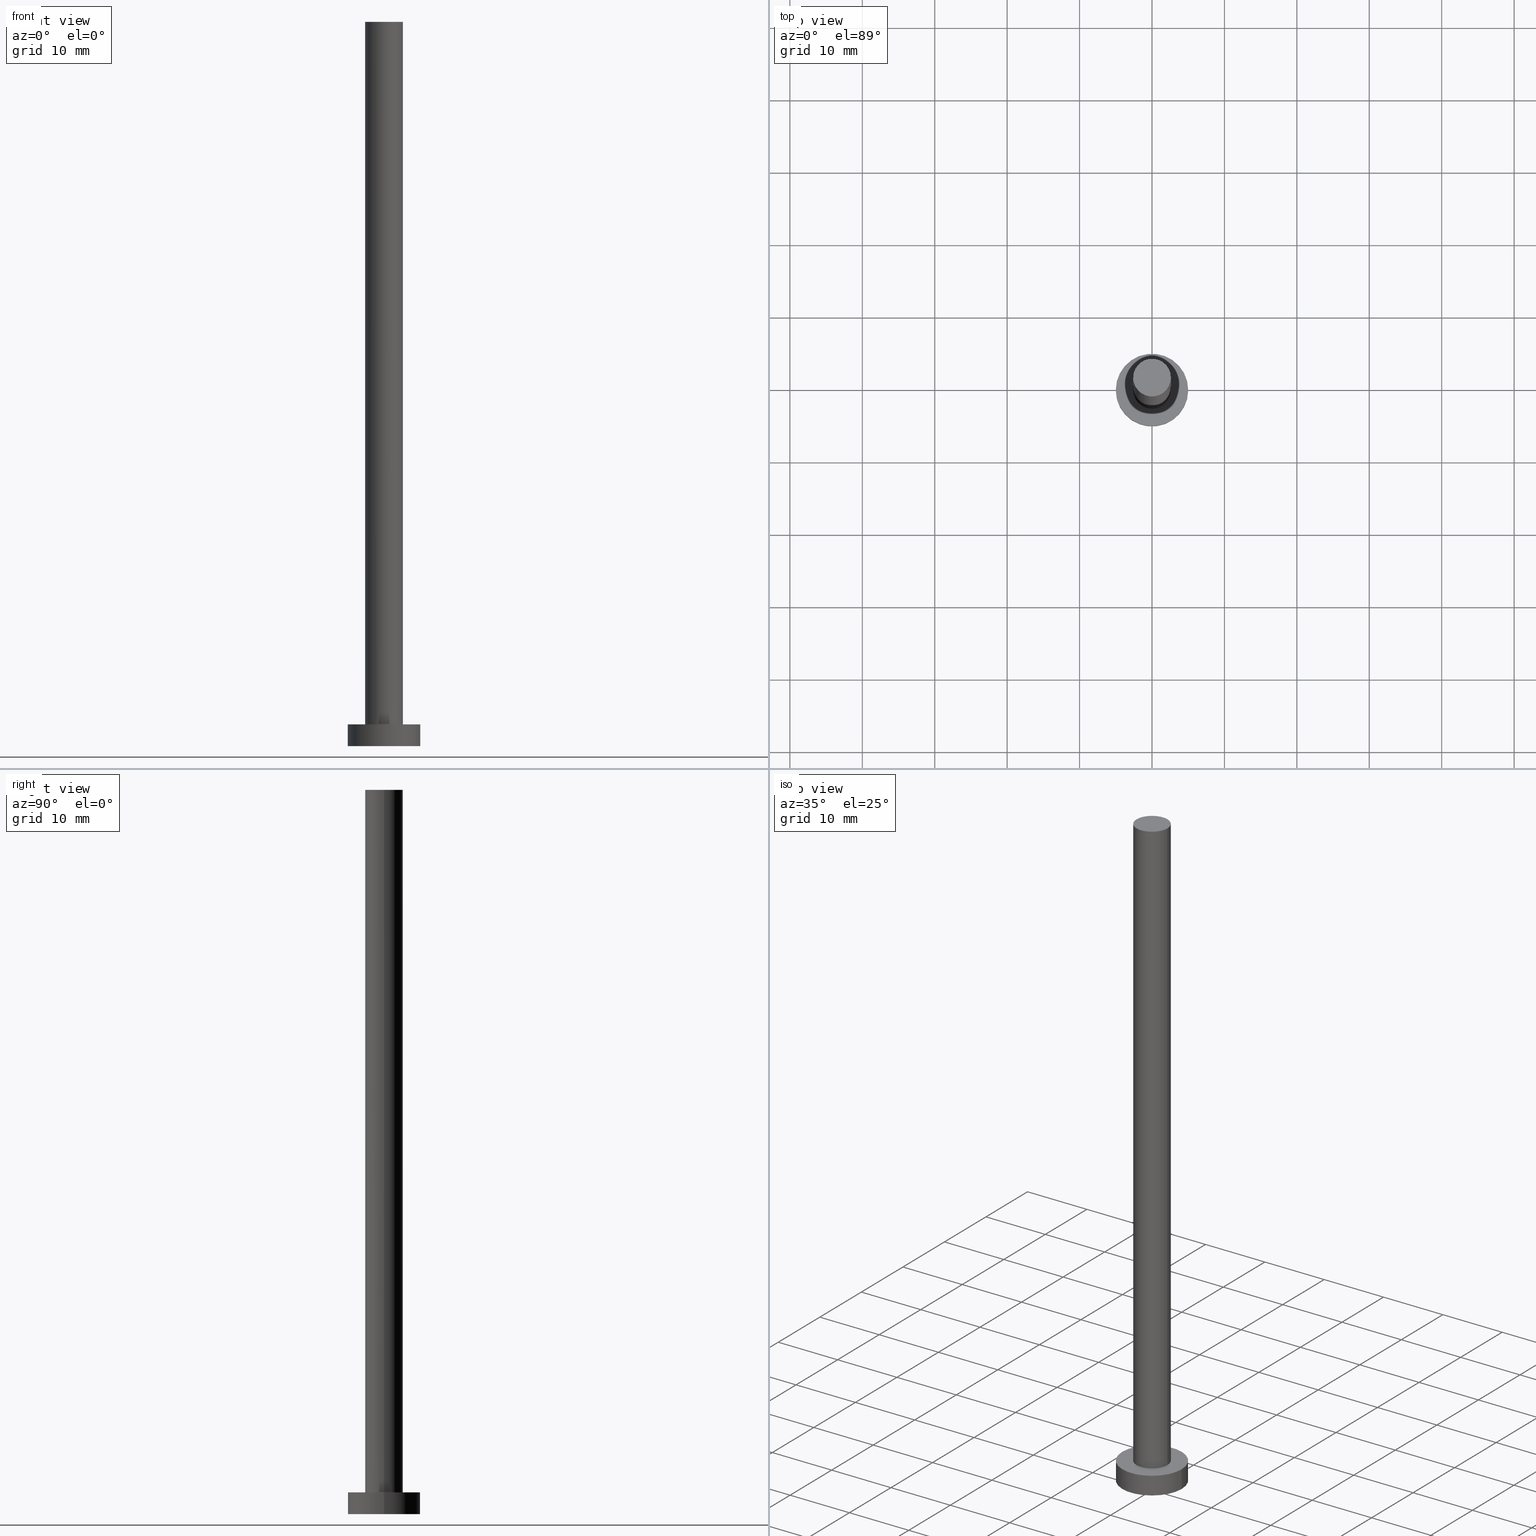
[diagram: canonical four-view strip — front | top / right | iso, engineering-drawing reading convention]
A machine part, canonical four-view strip (front | top / right | iso — engineering-drawing reading convention). The complete STEP part file that produces these views, byte-faithful:
ISO-10303-21;
HEADER;
FILE_DESCRIPTION (( 'STEP AP203' ),
    '1' );
FILE_NAME ('34a5.STEP',
    '2023-02-13T14:36:04',
    ( '' ),
    ( '' ),
    'SwSTEP 2.0',
    'SolidWorks 2019',
    '' );
FILE_SCHEMA (( 'CONFIG_CONTROL_DESIGN' ));
ENDSEC;

DATA;
#1 = DIRECTION ( 'NONE',  ( -0.000000000000000000, -0.000000000000000000, -1.000000000000000000 ) ) ;
#2 = ORIENTED_EDGE ( 'NONE', *, *, #92, .T. ) ;
#3 = CIRCLE ( 'NONE', #183, 2.600000000000000089 ) ;
#4 = VERTEX_POINT ( 'NONE', #167 ) ;
#5 = APPLICATION_CONTEXT ( 'configuration controlled 3d designs of mechanical parts and assemblies' ) ;
#6 = CARTESIAN_POINT ( 'NONE',  ( -5.000000000000000000, 0.000000000000000000, 3.000000000000000000 ) ) ;
#7 = CALENDAR_DATE ( 2023, 13, 2 ) ;
#8 = AXIS2_PLACEMENT_3D ( 'NONE', #98, #19, #80 ) ;
#9 = CC_DESIGN_PERSON_AND_ORGANIZATION_ASSIGNMENT ( #156, #53, ( #101 ) ) ;
#10 = DIRECTION ( 'NONE',  ( -0.000000000000000000, -0.000000000000000000, -1.000000000000000000 ) ) ;
#11 = CARTESIAN_POINT ( 'NONE',  ( 0.000000000000000000, 0.000000000000000000, 100.0000000000000000 ) ) ;
#12 = DATE_AND_TIME ( #161, #219 ) ;
#13 = AXIS2_PLACEMENT_3D ( 'NONE', #87, #166, #182 ) ;
#14 = APPROVAL_ROLE ( '' ) ;
#15 = APPROVAL_STATUS ( 'not_yet_approved' ) ;
#16 = DIRECTION ( 'NONE',  ( 1.000000000000000000, 0.000000000000000000, -0.000000000000000000 ) ) ;
#17 = DIRECTION ( 'NONE',  ( 1.000000000000000000, 0.000000000000000000, 0.000000000000000000 ) ) ;
#18 = EDGE_CURVE ( 'NONE', #4, #150, #3, .T. ) ;
#19 = DIRECTION ( 'NONE',  ( 0.000000000000000000, 0.000000000000000000, 1.000000000000000000 ) ) ;
#20 = ADVANCED_BREP_SHAPE_REPRESENTATION ( '34a5', ( #121, #8 ), #120 ) ;
#21 = CIRCLE ( 'NONE', #31, 5.000000000000000000 ) ;
#22 = CARTESIAN_POINT ( 'NONE',  ( 0.000000000000000000, 0.000000000000000000, 100.0000000000000000 ) ) ;
#23 = ORIENTED_EDGE ( 'NONE', *, *, #136, .F. ) ;
#24 = CYLINDRICAL_SURFACE ( 'NONE', #127, 5.000000000000000000 ) ;
#25 = APPROVAL_PERSON_ORGANIZATION ( #134, #146, #14 ) ;
#26 = CC_DESIGN_DATE_AND_TIME_ASSIGNMENT ( #12, #130, ( #201 ) ) ;
#27 = FACE_OUTER_BOUND ( 'NONE', #118, .T. ) ;
#28 = DIRECTION ( 'NONE',  ( 0.000000000000000000, 0.000000000000000000, 1.000000000000000000 ) ) ;
#29 = PERSON_AND_ORGANIZATION ( #49, #82 ) ;
#30 = CYLINDRICAL_SURFACE ( 'NONE', #140, 2.600000000000000089 ) ;
#31 = AXIS2_PLACEMENT_3D ( 'NONE', #185, #251, #50 ) ;
#32 = ORIENTED_EDGE ( 'NONE', *, *, #136, .T. ) ;
#33 = PERSON_AND_ORGANIZATION ( #49, #82 ) ;
#34 =( LENGTH_UNIT ( ) NAMED_UNIT ( * ) SI_UNIT ( .MILLI., .METRE. ) );
#35 = COORDINATED_UNIVERSAL_TIME_OFFSET ( 1, 0, .AHEAD. ) ;
#36 = ORIENTED_EDGE ( 'NONE', *, *, #175, .T. ) ;
#37 = FACE_BOUND ( 'NONE', #158, .T. ) ;
#38 = DATE_AND_TIME ( #7, #179 ) ;
#39 = AXIS2_PLACEMENT_3D ( 'NONE', #145, #228, #199 ) ;
#40 = ORIENTED_EDGE ( 'NONE', *, *, #175, .F. ) ;
#41 = ADVANCED_FACE ( 'NONE', ( #27 ), #91, .T. ) ;
#42 = LINE ( 'NONE', #196, #191 ) ;
#43 = LINE ( 'NONE', #6, #237 ) ;
#44 = AXIS2_PLACEMENT_3D ( 'NONE', #116, #109, #16 ) ;
#45 = DIRECTION ( 'NONE',  ( -0.000000000000000000, -0.000000000000000000, -1.000000000000000000 ) ) ;
#46 = DIRECTION ( 'NONE',  ( 0.000000000000000000, 0.000000000000000000, 1.000000000000000000 ) ) ;
#47 = EDGE_LOOP ( 'NONE', ( #23, #162, #2, #149 ) ) ;
#48 = ORIENTED_EDGE ( 'NONE', *, *, #74, .T. ) ;
#49 = PERSON ( 'NEUR�EN�', 'NEUR�EN�', 'NEUR�EN�', ('NEUR�EN�'), ('NEUR�EN�'), ('NEUR�EN�') ) ;
#50 = DIRECTION ( 'NONE',  ( 1.000000000000000000, 0.000000000000000000, 0.000000000000000000 ) ) ;
#51 = DATE_AND_TIME ( #229, #106 ) ;
#52 = EDGE_CURVE ( 'NONE', #218, #150, #248, .T. ) ;
#53 = PERSON_AND_ORGANIZATION_ROLE ( 'design_owner' ) ;
#54 = EDGE_LOOP ( 'NONE', ( #173, #40 ) ) ;
#55 = CIRCLE ( 'NONE', #192, 5.000000000000000000 ) ;
#56 = DIRECTION ( 'NONE',  ( 0.000000000000000000, 0.000000000000000000, 1.000000000000000000 ) ) ;
#57 = PERSON_AND_ORGANIZATION_ROLE ( 'creator' ) ;
#58 = CC_DESIGN_PERSON_AND_ORGANIZATION_ASSIGNMENT ( #171, #253, ( #200 ) ) ;
#59 = CARTESIAN_POINT ( 'NONE',  ( 0.000000000000000000, 0.000000000000000000, 3.000000000000000000 ) ) ;
#60 = EDGE_LOOP ( 'NONE', ( #155, #139, #153, #89 ) ) ;
#61 = CARTESIAN_POINT ( 'NONE',  ( -5.000000000000000000, 0.000000000000000000, 0.000000000000000000 ) ) ;
#62 = AXIS2_PLACEMENT_3D ( 'NONE', #245, #141, #242 ) ;
#63 = APPROVAL ( #148, 'NEUR�EN�' ) ;
#64 = CC_DESIGN_APPROVAL ( #146, ( #200 ) ) ;
#65 = CARTESIAN_POINT ( 'NONE',  ( 5.000000000000000000, 6.123233995736766282E-16, 3.000000000000000000 ) ) ;
#66 = ORIENTED_EDGE ( 'NONE', *, *, #18, .T. ) ;
#67 = DIRECTION ( 'NONE',  ( 1.000000000000000000, 0.000000000000000000, -0.000000000000000000 ) ) ;
#68 = EDGE_CURVE ( 'NONE', #81, #4, #42, .T. ) ;
#69 = VECTOR ( 'NONE', #45, 1000.000000000000000 ) ;
#70 = AXIS2_PLACEMENT_3D ( 'NONE', #59, #172, #170 ) ;
#71 = DIRECTION ( 'NONE',  ( -0.000000000000000000, -0.000000000000000000, -1.000000000000000000 ) ) ;
#72 = FACE_OUTER_BOUND ( 'NONE', #230, .T. ) ;
#73 = CC_DESIGN_APPROVAL ( #115, ( #201 ) ) ;
#74 = EDGE_CURVE ( 'NONE', #142, #111, #213, .T. ) ;
#75 = CARTESIAN_POINT ( 'NONE',  ( 0.000000000000000000, 0.000000000000000000, 0.000000000000000000 ) ) ;
#76 = DATE_TIME_ROLE ( 'classification_date' ) ;
#77 = DIRECTION ( 'NONE',  ( -1.000000000000000000, 0.000000000000000000, 0.000000000000000000 ) ) ;
#78 = CIRCLE ( 'NONE', #135, 2.600000000000000089 ) ;
#79 = ORIENTED_EDGE ( 'NONE', *, *, #52, .F. ) ;
#80 = DIRECTION ( 'NONE',  ( 1.000000000000000000, 0.000000000000000000, 0.000000000000000000 ) ) ;
#81 = VERTEX_POINT ( 'NONE', #125 ) ;
#82 = ORGANIZATION ( 'NEUR�EN�', 'NEUR�EN�', '' ) ;
#83 = APPROVAL_DATE_TIME ( #38, #115 ) ;
#84 = FACE_OUTER_BOUND ( 'NONE', #60, .T. ) ;
#85 = ADVANCED_FACE ( 'NONE', ( #84 ), #178, .T. ) ;
#86 = DIRECTION ( 'NONE',  ( -0.000000000000000000, -0.000000000000000000, -1.000000000000000000 ) ) ;
#87 = CARTESIAN_POINT ( 'NONE',  ( 0.000000000000000000, 0.000000000000000000, 100.0000000000000000 ) ) ;
#88 = UNCERTAINTY_MEASURE_WITH_UNIT (LENGTH_MEASURE( 1.000000000000000082E-05 ), #34, 'distance_accuracy_value', 'NONE');
#89 = ORIENTED_EDGE ( 'NONE', *, *, #215, .T. ) ;
#90 = DIRECTION ( 'NONE',  ( 1.000000000000000000, 0.000000000000000000, 0.000000000000000000 ) ) ;
#91 = PLANE ( 'NONE',  #13 ) ;
#92 = EDGE_CURVE ( 'NONE', #111, #205, #43, .T. ) ;
#93 = PERSON_AND_ORGANIZATION_ROLE ( 'design_supplier' ) ;
#94 = CC_DESIGN_APPROVAL ( #63, ( #102 ) ) ;
#95 = PERSON_AND_ORGANIZATION ( #49, #82 ) ;
#96 = CARTESIAN_POINT ( 'NONE',  ( -2.600000000000000089, 0.000000000000000000, 3.000000000000000000 ) ) ;
#97 = COORDINATED_UNIVERSAL_TIME_OFFSET ( 1, 0, .AHEAD. ) ;
#98 = CARTESIAN_POINT ( 'NONE',  ( 0.000000000000000000, 0.000000000000000000, 0.000000000000000000 ) ) ;
#99 = EDGE_LOOP ( 'NONE', ( #124, #32, #36, #189 ) ) ;
#100 = AXIS2_PLACEMENT_3D ( 'NONE', #244, #107, #67 ) ;
#101 = PRODUCT ( '34a5', '34a5', '', ( #174 ) ) ;
#102 = PRODUCT_DEFINITION_FORMATION_WITH_SPECIFIED_SOURCE ( 'LIBOVOLN�', '', #101, .NOT_KNOWN. ) ;
#103 = ADVANCED_FACE ( 'NONE', ( #164 ), #138, .F. ) ;
#104 = CARTESIAN_POINT ( 'NONE',  ( 0.000000000000000000, 0.000000000000000000, 3.000000000000000000 ) ) ;
#105 = ADVANCED_FACE ( 'NONE', ( #224 ), #126, .T. ) ;
#106 = LOCAL_TIME ( 15, 36, 4.000000000000000000, #147 ) ;
#107 = DIRECTION ( 'NONE',  ( 0.000000000000000000, 0.000000000000000000, 1.000000000000000000 ) ) ;
#108 = CARTESIAN_POINT ( 'NONE',  ( 0.000000000000000000, 0.000000000000000000, 3.000000000000000000 ) ) ;
#109 = DIRECTION ( 'NONE',  ( 0.000000000000000000, 0.000000000000000000, 1.000000000000000000 ) ) ;
#110 = ADVANCED_FACE ( 'NONE', ( #194 ), #24, .T. ) ;
#111 = VERTEX_POINT ( 'NONE', #208 ) ;
#112 = VERTEX_POINT ( 'NONE', #157 ) ;
#113 = CARTESIAN_POINT ( 'NONE',  ( 0.000000000000000000, 0.000000000000000000, 3.000000000000000000 ) ) ;
#114 = CIRCLE ( 'NONE', #143, 2.600000000000000089 ) ;
#115 = APPROVAL ( #15, 'NEUR�EN�' ) ;
#116 = CARTESIAN_POINT ( 'NONE',  ( 0.000000000000000000, 0.000000000000000000, 3.000000000000000000 ) ) ;
#117 = CALENDAR_DATE ( 2023, 13, 2 ) ;
#118 = EDGE_LOOP ( 'NONE', ( #195, #131 ) ) ;
#119 = CC_DESIGN_PERSON_AND_ORGANIZATION_ASSIGNMENT ( #137, #221, ( #201 ) ) ;
#120 =( GEOMETRIC_REPRESENTATION_CONTEXT ( 3 ) GLOBAL_UNCERTAINTY_ASSIGNED_CONTEXT ( ( #88 ) ) GLOBAL_UNIT_ASSIGNED_CONTEXT ( ( #34, #255, #151 ) ) REPRESENTATION_CONTEXT ( 'NONE', 'WORKASPACE' ) );
#121 = MANIFOLD_SOLID_BREP ( 'P�idat vysunut�m3', #222 ) ;
#122 = DATE_AND_TIME ( #117, #168 ) ;
#123 = APPROVAL_DATE_TIME ( #122, #146 ) ;
#124 = ORIENTED_EDGE ( 'NONE', *, *, #74, .F. ) ;
#125 = CARTESIAN_POINT ( 'NONE',  ( 2.600000000000000089, 3.184081677783117698E-16, 100.0000000000000000 ) ) ;
#126 = CYLINDRICAL_SURFACE ( 'NONE', #39, 5.000000000000000000 ) ;
#127 = AXIS2_PLACEMENT_3D ( 'NONE', #104, #1, #234 ) ;
#128 = DIRECTION ( 'NONE',  ( -1.000000000000000000, 0.000000000000000000, 0.000000000000000000 ) ) ;
#129 = CARTESIAN_POINT ( 'NONE',  ( 0.000000000000000000, 0.000000000000000000, 100.0000000000000000 ) ) ;
#130 = DATE_TIME_ROLE ( 'creation_date' ) ;
#131 = ORIENTED_EDGE ( 'NONE', *, *, #159, .T. ) ;
#132 = PLANE ( 'NONE',  #44 ) ;
#133 = PERSON_AND_ORGANIZATION ( #49, #82 ) ;
#134 = PERSON_AND_ORGANIZATION ( #49, #82 ) ;
#135 = AXIS2_PLACEMENT_3D ( 'NONE', #129, #56, #203 ) ;
#136 = EDGE_CURVE ( 'NONE', #142, #112, #238, .T. ) ;
#137 = PERSON_AND_ORGANIZATION ( #49, #82 ) ;
#138 = PLANE ( 'NONE',  #100 ) ;
#139 = ORIENTED_EDGE ( 'NONE', *, *, #180, .F. ) ;
#140 = AXIS2_PLACEMENT_3D ( 'NONE', #186, #252, #77 ) ;
#141 = DIRECTION ( 'NONE',  ( 0.000000000000000000, 0.000000000000000000, 1.000000000000000000 ) ) ;
#142 = VERTEX_POINT ( 'NONE', #210 ) ;
#143 = AXIS2_PLACEMENT_3D ( 'NONE', #11, #28, #90 ) ;
#144 = CIRCLE ( 'NONE', #70, 2.600000000000000089 ) ;
#145 = CARTESIAN_POINT ( 'NONE',  ( 0.000000000000000000, 0.000000000000000000, 3.000000000000000000 ) ) ;
#146 = APPROVAL ( #209, 'NEUR�EN�' ) ;
#147 = COORDINATED_UNIVERSAL_TIME_OFFSET ( 1, 0, .AHEAD. ) ;
#148 = APPROVAL_STATUS ( 'not_yet_approved' ) ;
#149 = ORIENTED_EDGE ( 'NONE', *, *, #239, .T. ) ;
#150 = VERTEX_POINT ( 'NONE', #96 ) ;
#151 =( NAMED_UNIT ( * ) SI_UNIT ( $, .STERADIAN. ) SOLID_ANGLE_UNIT ( ) );
#152 = ORIENTED_EDGE ( 'NONE', *, *, #18, .F. ) ;
#153 = ORIENTED_EDGE ( 'NONE', *, *, #52, .T. ) ;
#154 = DIRECTION ( 'NONE',  ( 1.000000000000000000, 0.000000000000000000, 0.000000000000000000 ) ) ;
#155 = ORIENTED_EDGE ( 'NONE', *, *, #68, .F. ) ;
#156 = PERSON_AND_ORGANIZATION ( #49, #82 ) ;
#157 = CARTESIAN_POINT ( 'NONE',  ( 5.000000000000000000, 6.123233995736766282E-16, 0.000000000000000000 ) ) ;
#158 = EDGE_LOOP ( 'NONE', ( #243, #152 ) ) ;
#159 = EDGE_CURVE ( 'NONE', #81, #218, #114, .T. ) ;
#160 = CIRCLE ( 'NONE', #254, 5.000000000000000000 ) ;
#161 = CALENDAR_DATE ( 2023, 13, 2 ) ;
#162 = ORIENTED_EDGE ( 'NONE', *, *, #163, .F. ) ;
#163 = EDGE_CURVE ( 'NONE', #111, #142, #55, .T. ) ;
#164 = FACE_OUTER_BOUND ( 'NONE', #54, .T. ) ;
#165 = ADVANCED_FACE ( 'NONE', ( #37, #72 ), #132, .T. ) ;
#166 = DIRECTION ( 'NONE',  ( 0.000000000000000000, 0.000000000000000000, 1.000000000000000000 ) ) ;
#167 = CARTESIAN_POINT ( 'NONE',  ( 2.600000000000000089, 3.184081677783117698E-16, 3.000000000000000000 ) ) ;
#168 = LOCAL_TIME ( 15, 36, 4.000000000000000000, #35 ) ;
#169 = SECURITY_CLASSIFICATION_LEVEL ( 'unclassified' ) ;
#170 = DIRECTION ( 'NONE',  ( 1.000000000000000000, 0.000000000000000000, 0.000000000000000000 ) ) ;
#171 = PERSON_AND_ORGANIZATION ( #49, #82 ) ;
#172 = DIRECTION ( 'NONE',  ( 0.000000000000000000, 0.000000000000000000, 1.000000000000000000 ) ) ;
#173 = ORIENTED_EDGE ( 'NONE', *, *, #239, .F. ) ;
#174 = MECHANICAL_CONTEXT ( 'NONE', #198, 'mechanical' ) ;
#175 = EDGE_CURVE ( 'NONE', #112, #205, #21, .T. ) ;
#176 = COORDINATED_UNIVERSAL_TIME_OFFSET ( 1, 0, .AHEAD. ) ;
#177 = COORDINATED_UNIVERSAL_TIME_OFFSET ( 1, 0, .AHEAD. ) ;
#178 = CYLINDRICAL_SURFACE ( 'NONE', #197, 2.600000000000000089 ) ;
#179 = LOCAL_TIME ( 15, 36, 4.000000000000000000, #176 ) ;
#180 = EDGE_CURVE ( 'NONE', #218, #81, #78, .T. ) ;
#181 = ORIENTED_EDGE ( 'NONE', *, *, #159, .F. ) ;
#182 = DIRECTION ( 'NONE',  ( 1.000000000000000000, 0.000000000000000000, -0.000000000000000000 ) ) ;
#183 = AXIS2_PLACEMENT_3D ( 'NONE', #108, #46, #204 ) ;
#184 = DIRECTION ( 'NONE',  ( 0.000000000000000000, 0.000000000000000000, 1.000000000000000000 ) ) ;
#185 = CARTESIAN_POINT ( 'NONE',  ( 0.000000000000000000, 0.000000000000000000, 0.000000000000000000 ) ) ;
#186 = CARTESIAN_POINT ( 'NONE',  ( 0.000000000000000000, 0.000000000000000000, 100.0000000000000000 ) ) ;
#187 = CC_DESIGN_PERSON_AND_ORGANIZATION_ASSIGNMENT ( #95, #57, ( #102 ) ) ;
#188 = DATE_AND_TIME ( #231, #226 ) ;
#189 = ORIENTED_EDGE ( 'NONE', *, *, #92, .F. ) ;
#190 = APPLICATION_PROTOCOL_DEFINITION ( 'international standard', 'config_control_design', 1994, #198 ) ;
#191 = VECTOR ( 'NONE', #240, 1000.000000000000000 ) ;
#192 = AXIS2_PLACEMENT_3D ( 'NONE', #113, #207, #17 ) ;
#193 = SHAPE_DEFINITION_REPRESENTATION ( #223, #20 ) ;
#194 = FACE_OUTER_BOUND ( 'NONE', #99, .T. ) ;
#195 = ORIENTED_EDGE ( 'NONE', *, *, #180, .T. ) ;
#196 = CARTESIAN_POINT ( 'NONE',  ( 2.600000000000000089, 3.184081677783117698E-16, 100.0000000000000000 ) ) ;
#197 = AXIS2_PLACEMENT_3D ( 'NONE', #22, #86, #128 ) ;
#198 = APPLICATION_CONTEXT ( 'configuration controlled 3d designs of mechanical parts and assemblies' ) ;
#199 = DIRECTION ( 'NONE',  ( -1.000000000000000000, 0.000000000000000000, 0.000000000000000000 ) ) ;
#200 = SECURITY_CLASSIFICATION ( '', '', #169 ) ;
#201 = PRODUCT_DEFINITION ( 'NEZN�M�', '', #102, #247 ) ;
#202 = ORIENTED_EDGE ( 'NONE', *, *, #163, .T. ) ;
#203 = DIRECTION ( 'NONE',  ( 1.000000000000000000, 0.000000000000000000, 0.000000000000000000 ) ) ;
#204 = DIRECTION ( 'NONE',  ( 1.000000000000000000, 0.000000000000000000, 0.000000000000000000 ) ) ;
#205 = VERTEX_POINT ( 'NONE', #61 ) ;
#206 = CC_DESIGN_DATE_AND_TIME_ASSIGNMENT ( #51, #76, ( #200 ) ) ;
#207 = DIRECTION ( 'NONE',  ( 0.000000000000000000, 0.000000000000000000, 1.000000000000000000 ) ) ;
#208 = CARTESIAN_POINT ( 'NONE',  ( -5.000000000000000000, 0.000000000000000000, 3.000000000000000000 ) ) ;
#209 = APPROVAL_STATUS ( 'not_yet_approved' ) ;
#210 = CARTESIAN_POINT ( 'NONE',  ( 5.000000000000000000, 6.123233995736766282E-16, 3.000000000000000000 ) ) ;
#211 = APPLICATION_PROTOCOL_DEFINITION ( 'international standard', 'config_control_design', 1994, #5 ) ;
#212 = APPROVAL_DATE_TIME ( #188, #63 ) ;
#213 = CIRCLE ( 'NONE', #62, 5.000000000000000000 ) ;
#214 = FACE_OUTER_BOUND ( 'NONE', #232, .T. ) ;
#215 = EDGE_CURVE ( 'NONE', #150, #4, #144, .T. ) ;
#216 = APPROVAL_PERSON_ORGANIZATION ( #29, #115, #250 ) ;
#217 = APPROVAL_ROLE ( '' ) ;
#218 = VERTEX_POINT ( 'NONE', #233 ) ;
#219 = LOCAL_TIME ( 15, 36, 4.000000000000000000, #177 ) ;
#220 = CC_DESIGN_PERSON_AND_ORGANIZATION_ASSIGNMENT ( #133, #93, ( #102 ) ) ;
#221 = PERSON_AND_ORGANIZATION_ROLE ( 'creator' ) ;
#222 = CLOSED_SHELL ( 'NONE', ( #225, #110, #105, #165, #103, #85, #41 ) ) ;
#223 = PRODUCT_DEFINITION_SHAPE ( 'NONE', 'NONE',  #201 ) ;
#224 = FACE_OUTER_BOUND ( 'NONE', #47, .T. ) ;
#225 = ADVANCED_FACE ( 'NONE', ( #214 ), #30, .T. ) ;
#226 = LOCAL_TIME ( 15, 36, 4.000000000000000000, #97 ) ;
#227 = CARTESIAN_POINT ( 'NONE',  ( -2.600000000000000089, 0.000000000000000000, 100.0000000000000000 ) ) ;
#228 = DIRECTION ( 'NONE',  ( -0.000000000000000000, -0.000000000000000000, -1.000000000000000000 ) ) ;
#229 = CALENDAR_DATE ( 2023, 13, 2 ) ;
#230 = EDGE_LOOP ( 'NONE', ( #202, #48 ) ) ;
#231 = CALENDAR_DATE ( 2023, 13, 2 ) ;
#232 = EDGE_LOOP ( 'NONE', ( #181, #236, #66, #79 ) ) ;
#233 = CARTESIAN_POINT ( 'NONE',  ( -2.600000000000000089, 0.000000000000000000, 100.0000000000000000 ) ) ;
#234 = DIRECTION ( 'NONE',  ( -1.000000000000000000, 0.000000000000000000, 0.000000000000000000 ) ) ;
#235 = CC_DESIGN_SECURITY_CLASSIFICATION ( #200, ( #102 ) ) ;
#236 = ORIENTED_EDGE ( 'NONE', *, *, #68, .T. ) ;
#237 = VECTOR ( 'NONE', #71, 1000.000000000000000 ) ;
#238 = LINE ( 'NONE', #65, #241 ) ;
#239 = EDGE_CURVE ( 'NONE', #205, #112, #160, .T. ) ;
#240 = DIRECTION ( 'NONE',  ( -0.000000000000000000, -0.000000000000000000, -1.000000000000000000 ) ) ;
#241 = VECTOR ( 'NONE', #10, 1000.000000000000000 ) ;
#242 = DIRECTION ( 'NONE',  ( 1.000000000000000000, 0.000000000000000000, 0.000000000000000000 ) ) ;
#243 = ORIENTED_EDGE ( 'NONE', *, *, #215, .F. ) ;
#244 = CARTESIAN_POINT ( 'NONE',  ( 0.000000000000000000, 0.000000000000000000, 0.000000000000000000 ) ) ;
#245 = CARTESIAN_POINT ( 'NONE',  ( 0.000000000000000000, 0.000000000000000000, 3.000000000000000000 ) ) ;
#246 = APPROVAL_PERSON_ORGANIZATION ( #33, #63, #217 ) ;
#247 = DESIGN_CONTEXT ( 'detailed design', #5, 'design' ) ;
#248 = LINE ( 'NONE', #227, #69 ) ;
#249 = PRODUCT_RELATED_PRODUCT_CATEGORY ( 'detail', '', ( #101 ) ) ;
#250 = APPROVAL_ROLE ( '' ) ;
#251 = DIRECTION ( 'NONE',  ( 0.000000000000000000, 0.000000000000000000, 1.000000000000000000 ) ) ;
#252 = DIRECTION ( 'NONE',  ( -0.000000000000000000, -0.000000000000000000, -1.000000000000000000 ) ) ;
#253 = PERSON_AND_ORGANIZATION_ROLE ( 'classification_officer' ) ;
#254 = AXIS2_PLACEMENT_3D ( 'NONE', #75, #184, #154 ) ;
#255 =( NAMED_UNIT ( * ) PLANE_ANGLE_UNIT ( ) SI_UNIT ( $, .RADIAN. ) );
ENDSEC;
END-ISO-10303-21;
